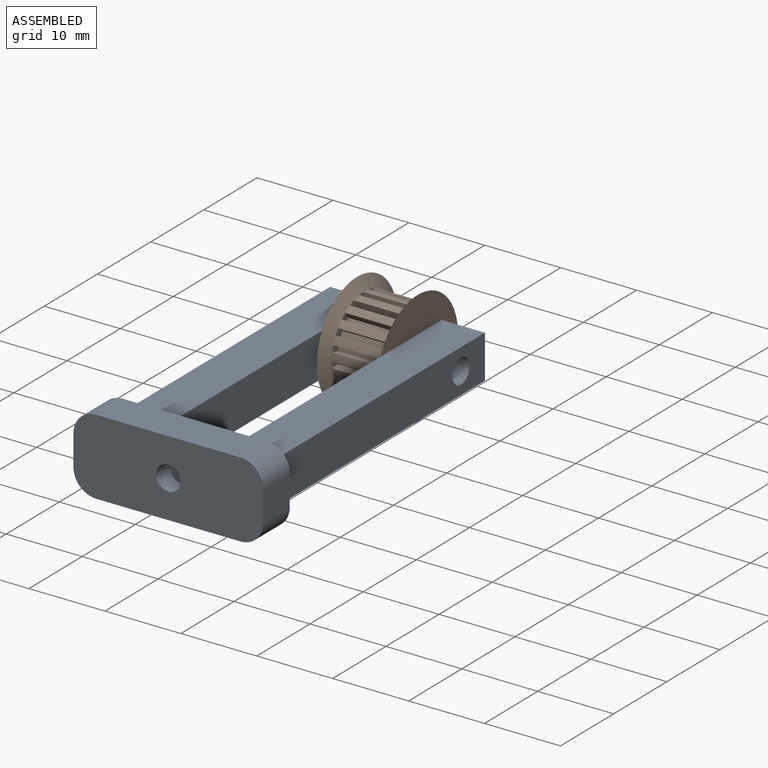
[diagram: assembled view]
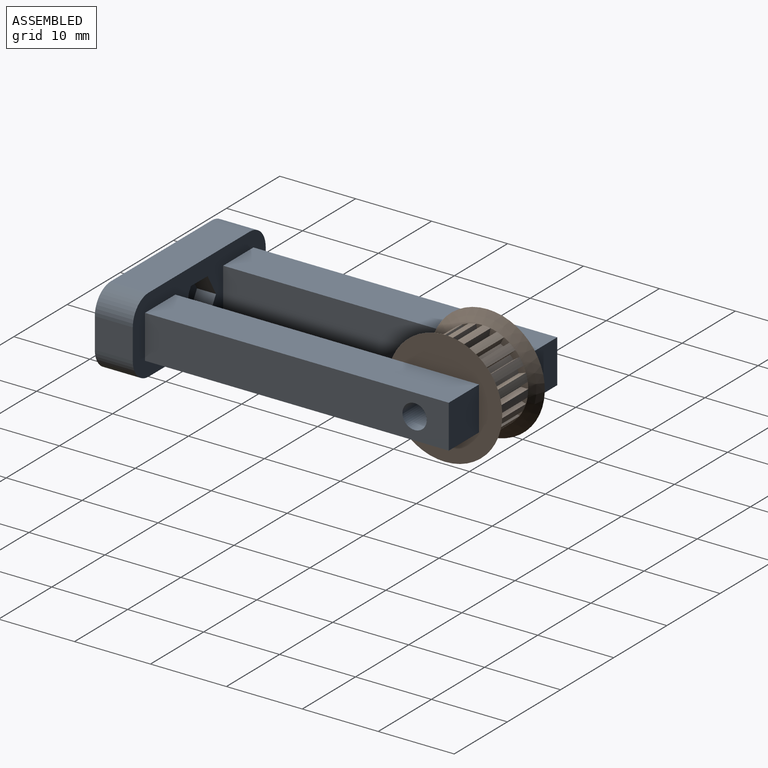
[diagram: assembled view, second angle]
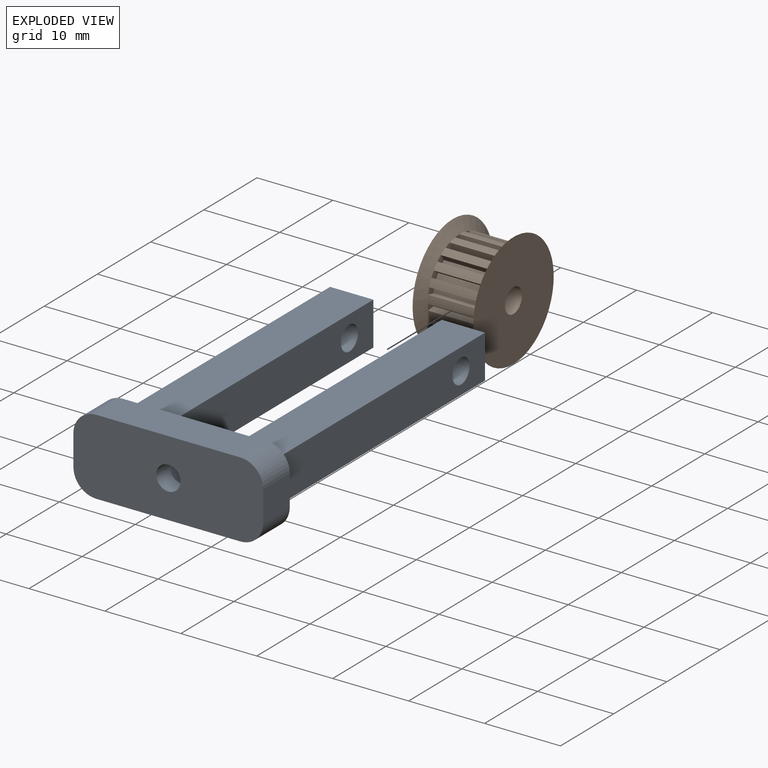
[diagram: exploded view]
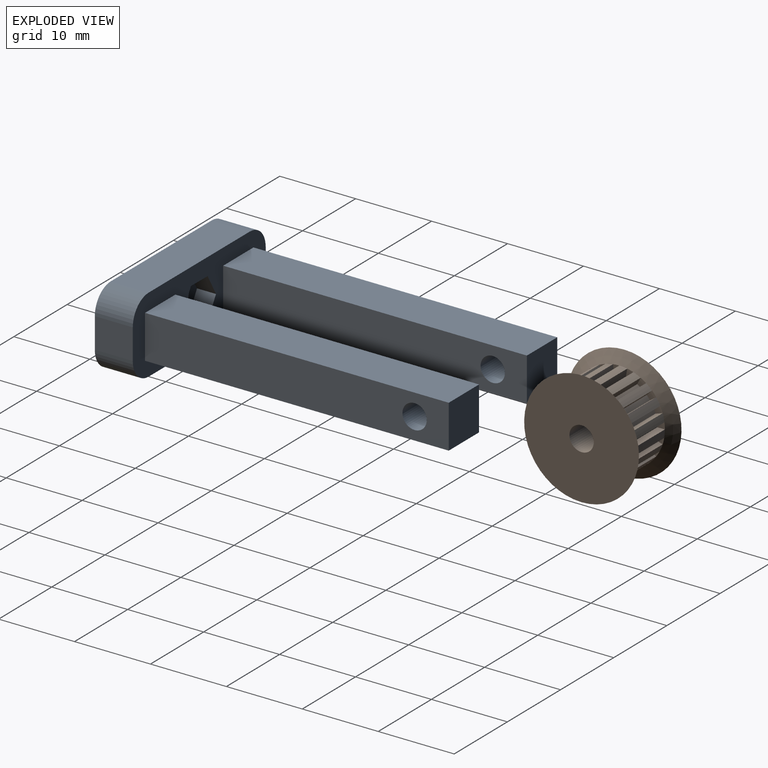
[diagram: exploded view, second angle]
ASSEMBLY  parts=2 mates=2
PART A: 30 faces, bbox 25x45x10 mm
  f0: plane 25x10mm, normal (0,1,0), area 151.5mm2, adj f1,f2,f3,f4,f6,f7,f8,f9
  f1: plane 19x5mm, normal (0,0,1), area 95mm2, adj f0,f5,f26,f29
  f2: plane 5x4mm, normal (-1,0,0), area 20mm2, adj f0,f5,f26,f27
  f3: plane 19x5mm, normal (0,0,-1), area 95mm2, adj f0,f5,f27,f28
  f4: plane 5x4mm, normal (1,0,0), area 20mm2, adj f0,f5,f28,f29
  f5: plane 25x10mm, normal (0,-1,0), area 234.2mm2, adj f1,f2,f3,f4,f23,f26,f27,f28
  f6: plane 40x5.7mm, normal (0,0,1), area 228mm2, adj f0,f7,f9,f10
  f7: plane 40x5.7mm, normal (1,0,0), area 220mm2, adj f0,f6,f8,f10,f25
  f8: plane 40x5.7mm, normal (0,0,-1), area 228mm2, adj f0,f7,f9,f10
  f9: plane 40x5.7mm, normal (-1,0,0), area 220mm2, adj f0,f6,f8,f10,f25
  f10: plane 5.7x5.7mm, normal (0,1,0), area 32.5mm2, adj f6,f7,f8,f9
  f11: plane 40x5.7mm, normal (0,0,-1), area 228mm2, adj f0,f12,f14,f15
  f12: plane 40x5.7mm, normal (-1,0,0), area 220mm2, adj f0,f11,f13,f15,f24
  f13: plane 40x5.7mm, normal (0,0,1), area 228mm2, adj f0,f12,f14,f15
  f14: plane 40x5.7mm, normal (1,0,0), area 220mm2, adj f0,f11,f13,f15,f24
  f15: plane 5.7x5.7mm, normal (0,1,0), area 32.5mm2, adj f11,f12,f13,f14
  f16: plane 3.15x2.5mm, normal (0,0,1), area 7.9mm2, adj f0,f17,f21,f22
  f17: plane 2.73x2.5mm, normal (0.87,0,0.5), area 7.9mm2, adj f0,f16,f18,f22
  f18: plane 2.73x2.5mm, normal (0.87,0,-0.5), area 7.9mm2, adj f0,f17,f19,f22
  f19: plane 3.15x2.5mm, normal (0,0,-1), area 7.9mm2, adj f0,f18,f20,f22
  f20: plane 2.73x2.5mm, normal (-0.87,0,-0.5), area 7.9mm2, adj f0,f19,f21,f22
  f21: plane 2.73x2.5mm, normal (-0.87,0,0.5), area 7.9mm2, adj f0,f16,f20,f22
  f22: plane 6.3x5.46mm, normal (0,1,0), area 17.7mm2, adj f16,f17,f18,f19,f20,f21,f23
  f23: cylinder r=1.6mm len=3.2mm, axis (0,1,0), area 25.1mm2, adj f5,f22
  f24: cylinder r=1.6mm len=5.7mm, axis (-1,0,0), area 57.3mm2, adj f12,f14
  f25: cylinder r=1.6mm len=5.7mm, axis (-1,0,0), area 57.3mm2, adj f7,f9
  f26: cylinder r=3mm len=5mm, axis (0,-1,0), area 23.6mm2, adj f0,f1,f2,f5
  f27: cylinder r=3mm len=5mm, axis (0,1,0), area 23.6mm2, adj f0,f2,f3,f5
  f28: cylinder r=3mm len=5mm, axis (0,-1,0), area 23.6mm2, adj f0,f3,f4,f5
  f29: cylinder r=3mm len=5mm, axis (0,1,0), area 23.6mm2, adj f0,f1,f4,f5
PART B: 125 faces, bbox 8x15.1x15.1 mm
  f0: plane 1.05x0.84mm, normal (-1,0,0), area 0.8mm2, adj f48,f89,f93,f121
  f1: plane 1.21x1.09mm, normal (-1,0,0), area 0.8mm2, adj f47,f92,f96,f121
  f2: plane 1.26x1.23mm, normal (-1,0,0), area 0.8mm2, adj f46,f95,f99,f121
  f3: plane 1.25x1.18mm, normal (-1,0,0), area 0.8mm2, adj f45,f98,f102,f121
  f4: plane 1.15x0.99mm, normal (-1,0,0), area 0.8mm2, adj f44,f101,f105,f121
  f5: plane 1.05x0.84mm, normal (-1,0,0), area 0.8mm2, adj f43,f104,f108,f121
  f6: plane 1.21x1.09mm, normal (-1,0,0), area 0.8mm2, adj f42,f107,f111,f121
  f7: plane 1.26x1.23mm, normal (-1,0,0), area 0.8mm2, adj f41,f110,f114,f121
  f8: plane 1.25x1.18mm, normal (-1,0,0), area 0.8mm2, adj f40,f113,f117,f121
  f9: plane 1.15x0.99mm, normal (-1,0,0), area 0.8mm2, adj f39,f60,f116,f121
  f10: plane 1.05x0.84mm, normal (-1,0,0), area 0.8mm2, adj f58,f59,f63,f121
  f11: plane 1.21x1.09mm, normal (-1,0,0), area 0.8mm2, adj f57,f62,f66,f121
  f12: plane 1.26x1.23mm, normal (-1,0,0), area 0.8mm2, adj f56,f65,f69,f121
  f13: plane 1.25x1.18mm, normal (-1,0,0), area 0.8mm2, adj f55,f68,f72,f121
  f14: plane 1.15x0.99mm, normal (-1,0,0), area 0.8mm2, adj f54,f71,f75,f121
  f15: plane 1.05x0.84mm, normal (-1,0,0), area 0.8mm2, adj f53,f74,f78,f121
  f16: plane 1.21x1.09mm, normal (-1,0,0), area 0.8mm2, adj f52,f77,f81,f121
  f17: plane 1.26x1.23mm, normal (-1,0,0), area 0.8mm2, adj f51,f80,f84,f121
  f18: plane 1.25x1.18mm, normal (-1,0,0), area 0.8mm2, adj f50,f83,f87,f121
  f19: plane 1.15x0.99mm, normal (-1,0,0), area 0.8mm2, adj f49,f86,f90,f121
  f20: plane 1.05x0.84mm, normal (1,0,0), area 0.8mm2, adj f48,f89,f93,f120
  f21: plane 1.21x1.09mm, normal (1,0,0), area 0.8mm2, adj f47,f92,f96,f120
  f22: plane 1.26x1.23mm, normal (1,0,0), area 0.8mm2, adj f46,f95,f99,f120
  f23: plane 1.25x1.18mm, normal (1,0,0), area 0.8mm2, adj f45,f98,f102,f120
  f24: plane 1.15x0.99mm, normal (1,0,0), area 0.8mm2, adj f44,f101,f105,f120
  f25: plane 1.05x0.84mm, normal (1,0,0), area 0.8mm2, adj f43,f104,f108,f120
  f26: plane 1.21x1.09mm, normal (1,0,0), area 0.8mm2, adj f42,f107,f111,f120
  f27: plane 1.26x1.23mm, normal (1,0,0), area 0.8mm2, adj f41,f110,f114,f120
  f28: plane 1.25x1.18mm, normal (1,0,0), area 0.8mm2, adj f40,f113,f117,f120
  f29: plane 1.15x0.99mm, normal (1,0,0), area 0.8mm2, adj f39,f60,f116,f120
  f30: plane 1.05x0.84mm, normal (1,0,0), area 0.8mm2, adj f58,f59,f63,f120
  f31: plane 1.21x1.09mm, normal (1,0,0), area 0.8mm2, adj f57,f62,f66,f120
  f32: plane 1.26x1.23mm, normal (1,0,0), area 0.8mm2, adj f56,f65,f69,f120
  f33: plane 1.25x1.18mm, normal (1,0,0), area 0.8mm2, adj f55,f68,f72,f120
  f34: plane 1.15x0.99mm, normal (1,0,0), area 0.8mm2, adj f54,f71,f75,f120
  f35: plane 1.05x0.84mm, normal (1,0,0), area 0.8mm2, adj f53,f74,f78,f120
  f36: plane 1.21x1.09mm, normal (1,0,0), area 0.8mm2, adj f52,f77,f81,f120
  f37: plane 1.26x1.23mm, normal (1,0,0), area 0.8mm2, adj f51,f80,f84,f120
  f38: plane 1.25x1.18mm, normal (1,0,0), area 0.8mm2, adj f50,f83,f87,f120
  f39: cylinder r=5mm len=6.2mm, axis (-1,0,0), area 4.3mm2, adj f9,f29,f60,f116
  f40: cylinder r=5mm len=6.2mm, axis (-1,0,0), area 4.3mm2, adj f8,f28,f113,f117
  f41: cylinder r=5mm len=6.2mm, axis (-1,0,0), area 4.3mm2, adj f7,f27,f110,f114
  f42: cylinder r=5mm len=6.2mm, axis (-1,0,0), area 4.3mm2, adj f6,f26,f107,f111
  f43: cylinder r=5mm len=6.2mm, axis (-1,0,0), area 4.3mm2, adj f5,f25,f104,f108
  f44: cylinder r=5mm len=6.2mm, axis (-1,0,0), area 4.3mm2, adj f4,f24,f101,f105
  f45: cylinder r=5mm len=6.2mm, axis (-1,0,0), area 4.3mm2, adj f3,f23,f98,f102
  f46: cylinder r=5mm len=6.2mm, axis (-1,0,0), area 4.3mm2, adj f2,f22,f95,f99
  f47: cylinder r=5mm len=6.2mm, axis (-1,0,0), area 4.3mm2, adj f1,f21,f92,f96
  f48: cylinder r=5mm len=6.2mm, axis (-1,0,0), area 4.3mm2, adj f0,f20,f89,f93
  f49: cylinder r=5mm len=6.2mm, axis (-1,0,0), area 4.3mm2, adj f19,f86,f90,f119
  f50: cylinder r=5mm len=6.2mm, axis (-1,0,0), area 4.3mm2, adj f18,f38,f83,f87
  f51: cylinder r=5mm len=6.2mm, axis (-1,0,0), area 4.3mm2, adj f17,f37,f80,f84
  f52: cylinder r=5mm len=6.2mm, axis (-1,0,0), area 4.3mm2, adj f16,f36,f77,f81
  f53: cylinder r=5mm len=6.2mm, axis (-1,0,0), area 4.3mm2, adj f15,f35,f74,f78
  f54: cylinder r=5mm len=6.2mm, axis (-1,0,0), area 4.3mm2, adj f14,f34,f71,f75
  f55: cylinder r=5mm len=6.2mm, axis (-1,0,0), area 4.3mm2, adj f13,f33,f68,f72
  f56: cylinder r=5mm len=6.2mm, axis (-1,0,0), area 4.3mm2, adj f12,f32,f65,f69
  f57: cylinder r=5mm len=6.2mm, axis (-1,0,0), area 4.3mm2, adj f11,f31,f62,f66
  f58: cylinder r=5mm len=6.2mm, axis (-1,0,0), area 4.3mm2, adj f10,f30,f59,f63
  f59: plane 6.2x1mm, normal (0,-1,0), area 6.2mm2, adj f10,f30,f58,f61
  f60: plane 6.2x0.99mm, normal (0,0.98,-0.17), area 6.2mm2, adj f9,f29,f39,f61
  f61: cylinder r=6mm len=6.2mm, axis (-1,0,0), area 6.5mm2, adj f59,f60,f120,f121
  f62: plane 6.2x0.95mm, normal (0,-0.95,-0.31), area 6.2mm2, adj f11,f31,f57,f64
  f63: plane 6.2x0.99mm, normal (0,0.99,0.14), area 6.2mm2, adj f10,f30,f58,f64
  f64: cylinder r=6mm len=6.2mm, axis (-1,0,0), area 6.5mm2, adj f62,f63,f120,f121
  f65: plane 6.2x0.81mm, normal (0,-0.81,-0.59), area 6.2mm2, adj f12,f32,f56,f67
  f66: plane 6.2x0.9mm, normal (0,0.9,0.44), area 6.2mm2, adj f11,f31,f57,f67
  f67: cylinder r=6mm len=6.2mm, axis (-1,0,0), area 6.5mm2, adj f65,f66,f120,f121
  f68: plane 6.2x0.81mm, normal (0,-0.59,-0.81), area 6.2mm2, adj f13,f33,f55,f70
  f69: plane 6.2x0.72mm, normal (0,0.72,0.69), area 6.2mm2, adj f12,f32,f56,f70
  f70: cylinder r=6mm len=6.2mm, axis (-1,0,0), area 6.5mm2, adj f68,f69,f120,f121
  f71: plane 6.2x0.95mm, normal (0,-0.31,-0.95), area 6.2mm2, adj f14,f34,f54,f73
  f72: plane 6.2x0.88mm, normal (0,0.47,0.88), area 6.2mm2, adj f13,f33,f55,f73
  f73: cylinder r=6mm len=6.2mm, axis (-1,0,0), area 6.5mm2, adj f71,f72,f120,f121
  f74: plane 6.2x1mm, normal (0,0,-1), area 6.2mm2, adj f15,f35,f53,f76
  f75: plane 6.2x0.99mm, normal (0,0.17,0.98), area 6.2mm2, adj f14,f34,f54,f76
  f76: cylinder r=6mm len=6.2mm, axis (-1,0,0), area 6.5mm2, adj f74,f75,f120,f121
  f77: plane 6.2x0.95mm, normal (0,0.31,-0.95), area 6.2mm2, adj f16,f36,f52,f79
  f78: plane 6.2x0.99mm, normal (0,-0.14,0.99), area 6.2mm2, adj f15,f35,f53,f79
  f79: cylinder r=6mm len=6.2mm, axis (-1,0,0), area 6.5mm2, adj f77,f78,f120,f121
  f80: plane 6.2x0.81mm, normal (0,0.59,-0.81), area 6.2mm2, adj f17,f37,f51,f82
  f81: plane 6.2x0.9mm, normal (0,-0.44,0.9), area 6.2mm2, adj f16,f36,f52,f82
  f82: cylinder r=6mm len=6.2mm, axis (-1,0,0), area 6.5mm2, adj f80,f81,f120,f121
  f83: plane 6.2x0.81mm, normal (0,0.81,-0.59), area 6.2mm2, adj f18,f38,f50,f85
  f84: plane 6.2x0.72mm, normal (0,-0.69,0.72), area 6.2mm2, adj f17,f37,f51,f85
  f85: cylinder r=6mm len=6.2mm, axis (-1,0,0), area 6.5mm2, adj f83,f84,f120,f121
  f86: plane 6.2x0.95mm, normal (0,0.95,-0.31), area 6.2mm2, adj f19,f49,f88,f119
  f87: plane 6.2x0.88mm, normal (0,-0.88,0.47), area 6.2mm2, adj f18,f38,f50,f88
  f88: cylinder r=6mm len=6.2mm, axis (-1,0,0), area 6.5mm2, adj f86,f87,f120,f121
  f89: plane 6.2x1mm, normal (0,1,0), area 6.2mm2, adj f0,f20,f48,f91
  f90: plane 6.2x0.99mm, normal (0,-0.98,0.17), area 6.2mm2, adj f19,f49,f91,f119
  f91: cylinder r=6mm len=6.2mm, axis (-1,0,0), area 6.5mm2, adj f89,f90,f120,f121
  f92: plane 6.2x0.95mm, normal (0,0.95,0.31), area 6.2mm2, adj f1,f21,f47,f94
  f93: plane 6.2x0.99mm, normal (0,-0.99,-0.14), area 6.2mm2, adj f0,f20,f48,f94
  f94: cylinder r=6mm len=6.2mm, axis (-1,0,0), area 6.5mm2, adj f92,f93,f120,f121
  f95: plane 6.2x0.81mm, normal (0,0.81,0.59), area 6.2mm2, adj f2,f22,f46,f97
  f96: plane 6.2x0.9mm, normal (0,-0.9,-0.44), area 6.2mm2, adj f1,f21,f47,f97
  f97: cylinder r=6mm len=6.2mm, axis (-1,0,0), area 6.5mm2, adj f95,f96,f120,f121
  f98: plane 6.2x0.81mm, normal (0,0.59,0.81), area 6.2mm2, adj f3,f23,f45,f100
  f99: plane 6.2x0.72mm, normal (0,-0.72,-0.69), area 6.2mm2, adj f2,f22,f46,f100
  f100: cylinder r=6mm len=6.2mm, axis (-1,0,0), area 6.5mm2, adj f98,f99,f120,f121
  f101: plane 6.2x0.95mm, normal (0,0.31,0.95), area 6.2mm2, adj f4,f24,f44,f103
  f102: plane 6.2x0.88mm, normal (0,-0.47,-0.88), area 6.2mm2, adj f3,f23,f45,f103
  f103: cylinder r=6mm len=6.2mm, axis (-1,0,0), area 6.5mm2, adj f101,f102,f120,f121
  f104: plane 6.2x1mm, normal (0,0,1), area 6.2mm2, adj f5,f25,f43,f106
  f105: plane 6.2x0.99mm, normal (0,-0.17,-0.98), area 6.2mm2, adj f4,f24,f44,f106
  f106: cylinder r=6mm len=6.2mm, axis (-1,0,0), area 6.5mm2, adj f104,f105,f120,f121
  f107: plane 6.2x0.95mm, normal (0,-0.31,0.95), area 6.2mm2, adj f6,f26,f42,f109
  f108: plane 6.2x0.99mm, normal (0,0.14,-0.99), area 6.2mm2, adj f5,f25,f43,f109
  f109: cylinder r=6mm len=6.2mm, axis (-1,0,0), area 6.5mm2, adj f107,f108,f120,f121
  f110: plane 6.2x0.81mm, normal (0,-0.59,0.81), area 6.2mm2, adj f7,f27,f41,f112
  f111: plane 6.2x0.9mm, normal (0,0.44,-0.9), area 6.2mm2, adj f6,f26,f42,f112
  f112: cylinder r=6mm len=6.2mm, axis (-1,0,0), area 6.5mm2, adj f110,f111,f120,f121
  f113: plane 6.2x0.81mm, normal (0,-0.81,0.59), area 6.2mm2, adj f8,f28,f40,f115
  f114: plane 6.2x0.72mm, normal (0,0.69,-0.72), area 6.2mm2, adj f7,f27,f41,f115
  f115: cylinder r=6mm len=6.2mm, axis (-1,0,0), area 6.5mm2, adj f113,f114,f120,f121
  f116: plane 6.2x0.95mm, normal (0,-0.95,0.31), area 6.2mm2, adj f9,f29,f39,f118
  f117: plane 6.2x0.88mm, normal (0,0.88,-0.47), area 6.2mm2, adj f8,f28,f40,f118
  f118: cylinder r=6mm len=6.2mm, axis (-1,0,0), area 6.5mm2, adj f116,f117,f120,f121
  f119: plane 1.15x0.99mm, normal (1,0,0), area 0.8mm2, adj f49,f86,f90,f120
  f120: cone r=6mm half-angle=60deg, axis (-1,0,0), area 76.7mm2, adj f20,f21,f22,f23,f24,f25,f26,f27
  f121: cone r=6mm half-angle=60deg, axis (1,0,0), area 76.7mm2, adj f0,f1,f2,f3,f4,f5,f6,f7
  f122: plane 15.12x15.12mm, normal (1,0,0), area 171.5mm2, adj f121,f123
  f123: cylinder r=1.6mm len=8mm, axis (-1,0,0), area 80.4mm2, adj f122,f124
  f124: plane 15.12x15.12mm, normal (-1,0,0), area 171.5mm2, adj f120,f123
PLACE A t=(16.48,-8.05,5.38)mm
PLACE B t=(13.88,27.45,5.38)mm
MATE pin_slot B.f120 <-> A.f24  axis (1,0,0) through (20.98,27.45,5.38)mm
MATE planar B.f123 <-> A.f9  axis (1,0,0) through (20.98,27.45,5.38)mm
